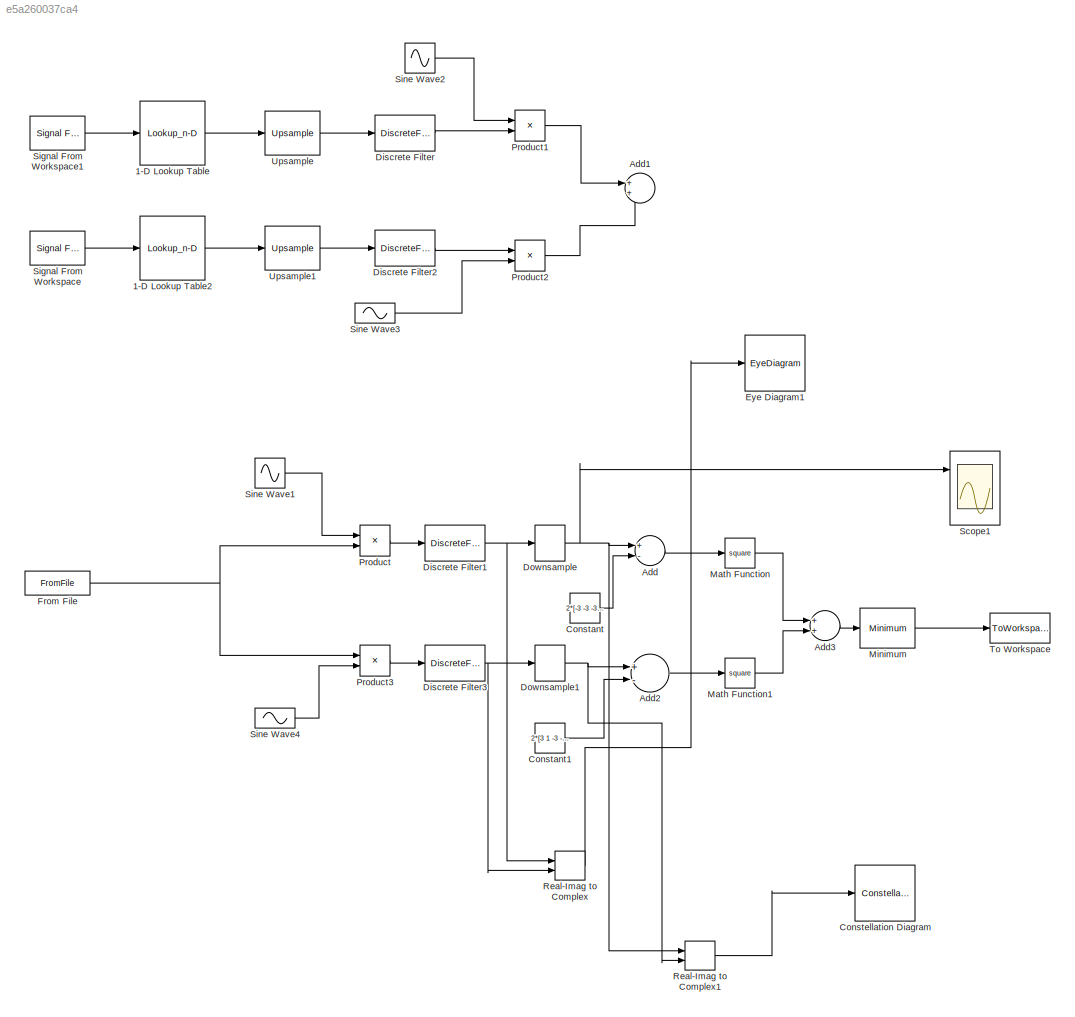
MODEL slx_e5a260037ca4
KIND model
CONFIG AbsTol = auto
CONFIG FixedStep = auto
CONFIG MaxStep = auto
CONFIG MinStep = auto
CONFIG RelTol = 1e-3
CONFIG SampleTimeConstraint = Unconstrained
CONFIG Solver = FixedStepDiscrete
CONFIG SolverMode = SingleTasking
CONFIG SolverName = FixedStepDiscrete
CONFIG StartTime = 0.0
CONFIG StopTime = (16+322)*8
BLOCK [Lookup_n-D] 1-D Lookup Table
  BreakpointsForDimension1 = [0 1 2 3]
  Commented = on
  InternalRulePriority = Speed
  NumberOfTableDimensions = 1
  Ports = [1, 1]
  RndMeth = Simplest
  Table = [1 -1 1 -1]*3/sqrt(2)
BLOCK [Lookup_n-D] 1-D Lookup Table2
  BreakpointsForDimension1 = [0 1 2 3]
  Commented = on
  InternalRulePriority = Speed
  NumberOfTableDimensions = 1
  Ports = [1, 1]
  RndMeth = Simplest
  Table = [1 1 -1 -1]*3/sqrt(2)
BLOCK [Sum] Add
  InputSameDT = off
  Inputs = +-
  OutDataTypeStr = Inherit: Inherit via internal rule
  Ports = [2, 1]
  SaturateOnIntegerOverflow = off
BLOCK [Sum] Add1
  Commented = on
  IconShape = round
  InputSameDT = off
  OutDataTypeStr = Inherit: Inherit via internal rule
  Ports = [2, 1]
  SaturateOnIntegerOverflow = off
BLOCK [Sum] Add2
  InputSameDT = off
  Inputs = +-
  OutDataTypeStr = Inherit: Inherit via internal rule
  Ports = [2, 1]
  SaturateOnIntegerOverflow = off
BLOCK [Sum] Add3
  InputSameDT = off
  OutDataTypeStr = Inherit: Inherit via internal rule
  Ports = [2, 1]
  SaturateOnIntegerOverflow = off
BLOCK [Constant] Constant
  Value = 2*[-3 -3 -3 -3 -1 -1 -1 -1 3 3 3 3  1 1 1 1]
BLOCK [Constant] Constant1
  Value = 2*[3 1 -3 -1 3 1 -3 -1 3 1 -3 -1 3 1 -3 -1 ]
BLOCK [ConstellationDiagram] Constellation Diagram
  Ports = [1]
  ScopeSpecificationString = comm.scopes.ConstellationDiagramBlockCfg('CurrentConfiguration', extmgr.ConfigurationSet(extmgr.Configuration('Core','General UI',true),extmgr.Configuration('Core','Source UI',true),extmgr.Configuration('Sources','WiredSimulink',true),extmgr.Configuration('Sources','Simulink',false),extmgr.Configuration('Sources','SimulinkEvent',false),extmgr.Configuration('Sources','File',false),extmgr.Configurat...<+2813ch>
BLOCK [DiscreteFilter] Discrete Filter
  Commented = on
  Denominator = [1]
  InputPortMap = u0
  Numerator = rcosine(1,8,'fir/sqrt',0.5,6)
  Ports = [1, 1]
BLOCK [DiscreteFilter] Discrete Filter1
  Denominator = [1]
  InputPortMap = u0
  Numerator = rcosine(1,8,'fir/sqrt',0.3,8)
  Ports = [1, 1]
BLOCK [DiscreteFilter] Discrete Filter2
  Commented = on
  Denominator = [1]
  InputPortMap = u0
  Numerator = rcosine(1,8,'fir/sqrt',0.5,6)
  Ports = [1, 1]
BLOCK [DiscreteFilter] Discrete Filter3
  Denominator = [1]
  InputPortMap = u0
  Numerator = rcosine(1,8,'fir/sqrt',0.3,8)
  Ports = [1, 1]
BLOCK [DownSample] Downsample
  InputProcessing = Inherited (this choice will be removed - see release notes)
  N = 8
  RateOptions = Allow multirate processing
BLOCK [DownSample] Downsample1
  InputProcessing = Inherited (this choice will be removed - see release notes)
  N = 8
  RateOptions = Allow multirate processing
BLOCK [EyeDiagram] Eye Diagram1
  Ports = [1]
  ScopeSpecificationString = comm.scopes.EyeDiagramBlockCfg('CurrentConfiguration', extmgr.ConfigurationSet(extmgr.Configuration('Core','General UI',true),extmgr.Configuration('Core','Source UI',true),extmgr.Configuration('Sources','WiredSimulink',true),extmgr.Configuration('Sources','Simulink',false),extmgr.Configuration('Sources','File',false),extmgr.Configuration('Sources','Workspace',false),extmgr.Configuration('Sources',...<+1942ch>
BLOCK [FromFile] From File
  FileName = qam16data.mat
  SampleTime = 1
BLOCK [Math] Math Function
  Operator = square
  Ports = [1, 1]
BLOCK [Math] Math Function1
  Operator = square
  Ports = [1, 1]
BLOCK [Reference] Minimum  REF=dspstat3/Minimum
  Ports = [1, 1]
  SourceBlock = dspstat3/Minimum
  SourceType = Minimum
  UserDataPersistent = on
BLOCK [Product] Product
  InputSameDT = off
  OutDataTypeStr = Inherit: Inherit via internal rule
  Ports = [2, 1]
  RndMeth = Floor
  SaturateOnIntegerOverflow = off
BLOCK [Product] Product1
  Commented = on
  InputSameDT = off
  OutDataTypeStr = Inherit: Inherit via internal rule
  Ports = [2, 1]
  RndMeth = Floor
  SaturateOnIntegerOverflow = off
BLOCK [Product] Product2
  Commented = on
  InputSameDT = off
  OutDataTypeStr = Inherit: Inherit via internal rule
  Ports = [2, 1]
  RndMeth = Floor
  SaturateOnIntegerOverflow = off
BLOCK [Product] Product3
  InputSameDT = off
  OutDataTypeStr = Inherit: Inherit via internal rule
  Ports = [2, 1]
  RndMeth = Floor
  SaturateOnIntegerOverflow = off
BLOCK [RealImagToComplex] Real-Imag to Complex
  Ports = [2, 1]
BLOCK [RealImagToComplex] Real-Imag to Complex1
  Ports = [2, 1]
BLOCK [Scope] Scope1
  NumInputPorts = 3
  Ports = [3]
  ScopeSpecificationString = Simulink.scopes.TimeScopeBlockCfg('CurrentConfiguration', extmgr.ConfigurationSet(extmgr.Configuration('Core','General UI',true),extmgr.Configuration('Core','Source UI',true),extmgr.Configuration('Sources','WiredSimulink',true,'DataLoggingVariableName','ScopeData1'),extmgr.Configuration('Visuals','Time Domain',true,'SerializedDisplays',{struct('MinYLimReal','-0.60017','MaxYLimReal','1.16884','YLab...<+1465ch>
BLOCK [Reference] Signal From Workspace  REF=dspsrcs4/Signal From
Workspace
  Commented = on
  Ports = [0, 1]
  SourceBlock = dspsrcs4/Signal From\nWorkspace
  SourceType = Signal From Workspace
BLOCK [Reference] Signal From Workspace1  REF=dspsrcs4/Signal From
Workspace
  Commented = on
  Ports = [0, 1]
  SourceBlock = dspsrcs4/Signal From\nWorkspace
  SourceType = Signal From Workspace
BLOCK [Sin] Sine Wave1
  Amplitude = sqrt(2)
  Frequency = 2*pi/4
  Phase = pi/2
  Ports = [0, 1]
  SampleTime = 1
BLOCK [Sin] Sine Wave2
  Amplitude = sqrt(2)
  Commented = on
  Frequency = 2*pi/4
  Phase = pi/2
  Ports = [0, 1]
  SampleTime = 1
BLOCK [Sin] Sine Wave3
  Amplitude = -sqrt(2)
  Commented = on
  Frequency = 2*pi/4
  Ports = [0, 1]
  SampleTime = 1
BLOCK [Sin] Sine Wave4
  Amplitude = -sqrt(2)
  Frequency = 2*pi/4
  Ports = [0, 1]
  SampleTime = 1
BLOCK [ToWorkspace] To Workspace
  FixptAsFi = on
  MaxDataPoints = inf
  Ports = [1]
  SampleTime = -1
  Save2DSignal = 2-D array (concatenate along first dimension)
  VariableName = simoutderp
BLOCK [Reference] Upsample  REF=dspsigops/Upsample
  Commented = on
  Ports = [1, 1]
  SourceBlock = dspsigops/Upsample
  SourceType = Upsample
  UserDataPersistent = on
BLOCK [Reference] Upsample1  REF=dspsigops/Upsample
  Commented = on
  Ports = [1, 1]
  SourceBlock = dspsigops/Upsample
  SourceType = Upsample
  UserDataPersistent = on
LINE 1-D Lookup Table2:1 -> Upsample1:1
LINE 1-D Lookup Table:1 -> Upsample:1
LINE Add2:1 -> Math Function1:1
LINE Add3:1 -> Minimum:1
LINE Add:1 -> Math Function:1
LINE Constant1:1 -> Add2:2
LINE Constant:1 -> Add:2
NET Discrete Filter1:1 -> Downsample:1, Real-Imag to Complex:1
LINE Discrete Filter2:1 -> Product2:1
NET Discrete Filter3:1 -> Downsample1:1, Real-Imag to Complex:2
LINE Discrete Filter:1 -> Product1:2
NET Downsample1:1 -> Add2:1, Real-Imag to Complex1:2
NET Downsample:1 -> Add:1, Real-Imag to Complex1:1, Scope1:1
NET From File:1 -> Product3:1, Product:2
LINE Math Function1:1 -> Add3:2
LINE Math Function:1 -> Add3:1
LINE Minimum:1 -> To Workspace:1
LINE Product1:1 -> Add1:1
LINE Product2:1 -> Add1:2
LINE Product3:1 -> Discrete Filter3:1
LINE Product:1 -> Discrete Filter1:1
LINE Real-Imag to Complex1:1 -> Constellation Diagram:1
LINE Real-Imag to Complex:1 -> Eye Diagram1:1
LINE Signal From Workspace1:1 -> 1-D Lookup Table:1
LINE Signal From Workspace:1 -> 1-D Lookup Table2:1
LINE Sine Wave1:1 -> Product:1
LINE Sine Wave2:1 -> Product1:1
LINE Sine Wave3:1 -> Product2:2
LINE Sine Wave4:1 -> Product3:2
LINE Upsample1:1 -> Discrete Filter2:1
LINE Upsample:1 -> Discrete Filter:1
note: NET lines group one-source signal fan-out (src -> all destinations, sorted); 1:1 wires keep LINE
